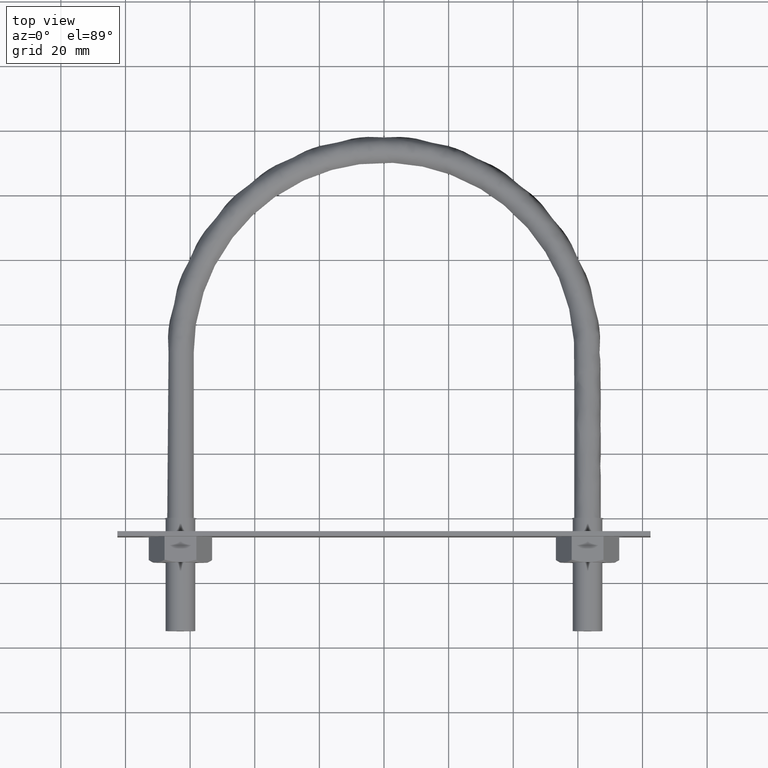
[diagram: clean part render]
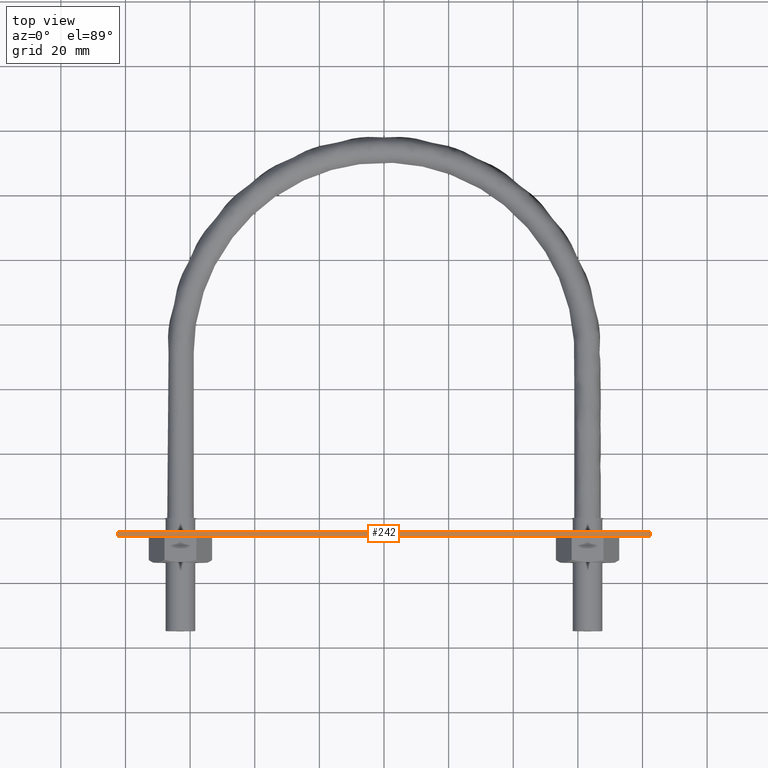
[diagram: same view with one face highlighted and labeled with its STEP entity id]
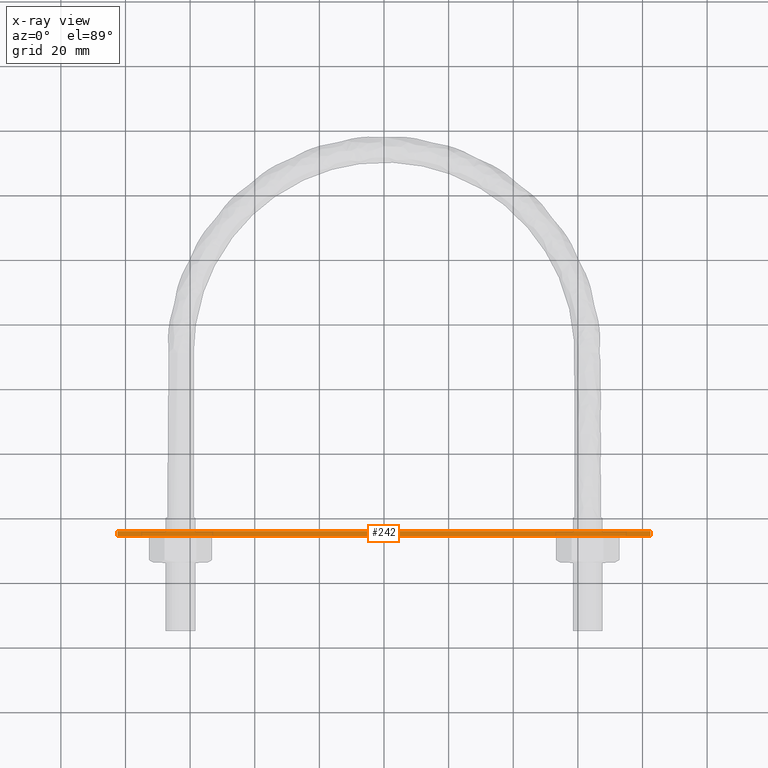
[diagram: x-ray of the same camera — body ghosted, the highlighted face saturated]
A machine part, top view. The second image highlights one B-rep face of the part: STEP entity #242.
The next image is the same camera in x-ray: the body ghosted, the highlighted face saturated — about 0% of this face is hidden behind the body in this view.
In plain terms, the highlighted planar face has unit normal (0, -0, -1).
Its self-contained STEP definition (entity closure, byte-faithful):
#242 = ADVANCED_FACE( '', ( #346 ), #347, .F. );
#346 = FACE_OUTER_BOUND( '', #666, .T. );
#347 = PLANE( '', #667 );
#666 = EDGE_LOOP( '', ( #938, #939, #940, #941 ) );
#667 = AXIS2_PLACEMENT_3D( '', #942, #943, #944 );
#938 = ORIENTED_EDGE( '', *, *, #1341, .T. );
#939 = ORIENTED_EDGE( '', *, *, #1322, .F. );
#940 = ORIENTED_EDGE( '', *, *, #1313, .F. );
#941 = ORIENTED_EDGE( '', *, *, #1351, .T. );
#942 = CARTESIAN_POINT( '', ( 82.5000000000000, -5.80000000000000, 12.5000000000000 ) );
#943 = DIRECTION( '', ( 0.000000000000000, -6.12303176911189E-017, -1.00000000000000 ) );
#944 = DIRECTION( '', ( 1.00000000000000, 0.000000000000000, 0.000000000000000 ) );
#1313 = EDGE_CURVE( '', #1485, #1480, #1487, .T. );
#1322 = EDGE_CURVE( '', #1480, #1500, #1504, .T. );
#1341 = EDGE_CURVE( '', #1535, #1500, #1536, .T. );
#1351 = EDGE_CURVE( '', #1485, #1535, #1547, .T. );
#1480 = VERTEX_POINT( '', #1764 );
#1485 = VERTEX_POINT( '', #1771 );
#1487 = LINE( '', #1774, #1775 );
#1500 = VERTEX_POINT( '', #1790 );
#1504 = LINE( '', #1796, #1797 );
#1535 = VERTEX_POINT( '', #1838 );
#1536 = LINE( '', #1839, #1840 );
#1547 = LINE( '', #1860, #1861 );
#1764 = CARTESIAN_POINT( '', ( -82.5000000000000, -5.80000000000000, 12.5000000000000 ) );
#1771 = CARTESIAN_POINT( '', ( 82.5000000000000, -5.80000000000000, 12.5000000000000 ) );
#1774 = CARTESIAN_POINT( '', ( 82.5000000000000, -5.80000000000000, 12.5000000000000 ) );
#1775 = VECTOR( '', #2235, 1000.00000000000 );
#1790 = CARTESIAN_POINT( '', ( -82.5000000000000, -4.30000000000000, 12.5000000000000 ) );
#1796 = CARTESIAN_POINT( '', ( -82.5000000000000, -5.80000000000000, 12.5000000000000 ) );
#1797 = VECTOR( '', #2252, 1000.00000000000 );
#1838 = CARTESIAN_POINT( '', ( 82.5000000000000, -4.30000000000000, 12.5000000000000 ) );
#1839 = CARTESIAN_POINT( '', ( 82.5000000000000, -4.30000000000000, 12.5000000000000 ) );
#1840 = VECTOR( '', #2287, 1000.00000000000 );
#1860 = CARTESIAN_POINT( '', ( 82.5000000000000, -5.80000000000000, 12.5000000000000 ) );
#1861 = VECTOR( '', #2297, 1000.00000000000 );
#2235 = DIRECTION( '', ( -1.00000000000000, 0.000000000000000, 0.000000000000000 ) );
#2252 = DIRECTION( '', ( 0.000000000000000, 1.00000000000000, -6.12303176911189E-017 ) );
#2287 = DIRECTION( '', ( -1.00000000000000, 0.000000000000000, 0.000000000000000 ) );
#2297 = DIRECTION( '', ( 0.000000000000000, 1.00000000000000, -6.12303176911189E-017 ) );